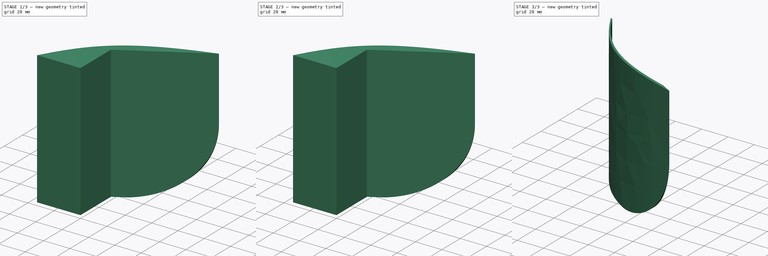
[diagram: build sequence overview — one tinted view per stage of 3, left to right]
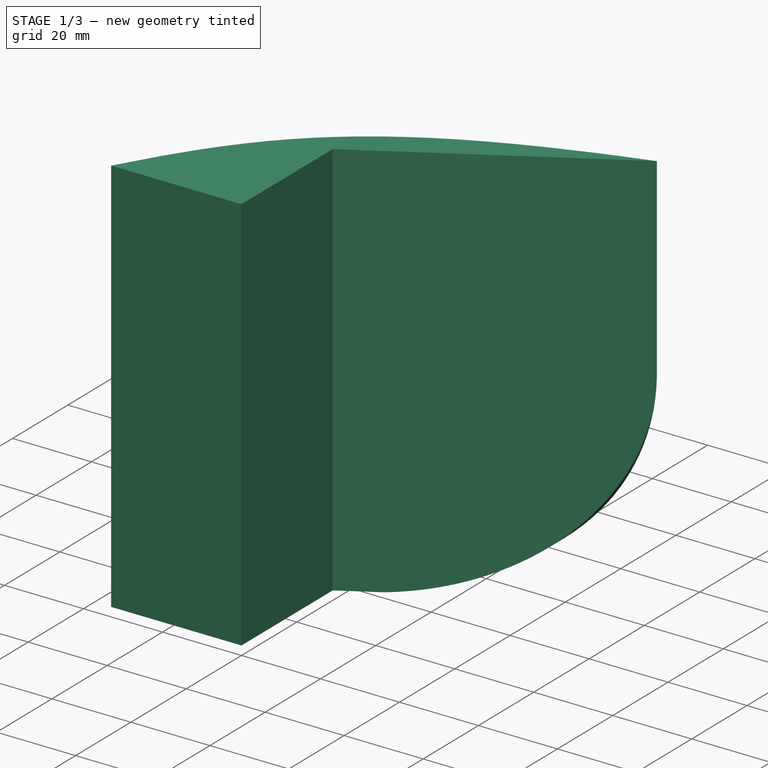
[diagram: stage 1 of 3 — iso view after this stage's code; geometry added in this stage tinted green]
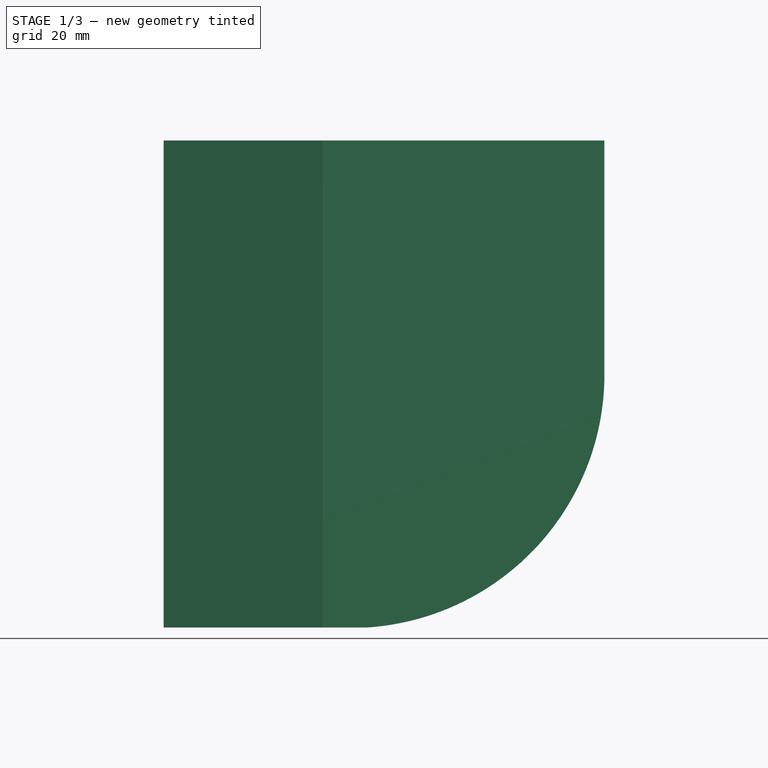
[diagram: stage 1 of 3 — front view after this stage's code; geometry added in this stage tinted green]
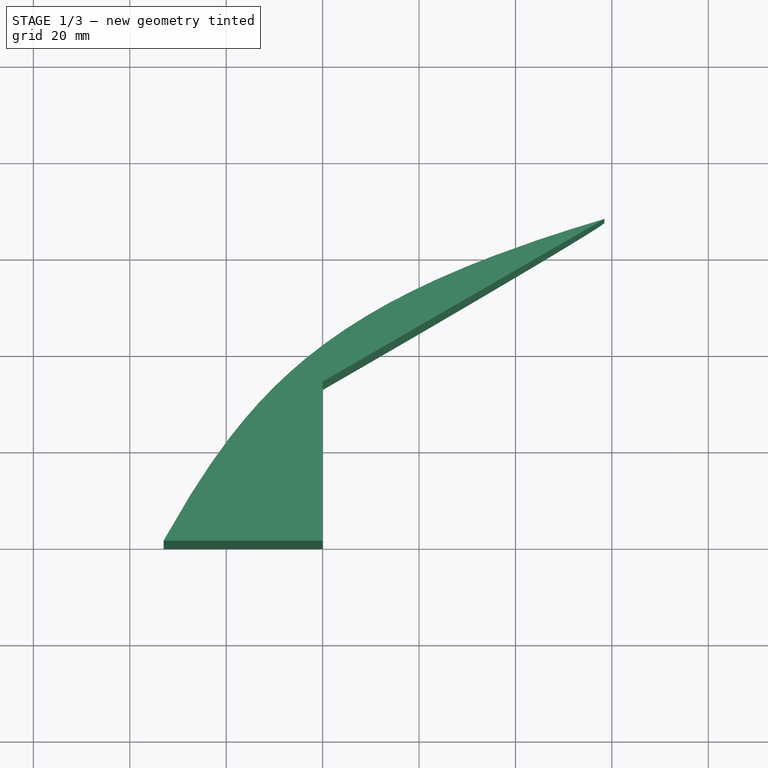
[diagram: stage 1 of 3 — top view after this stage's code; geometry added in this stage tinted green]
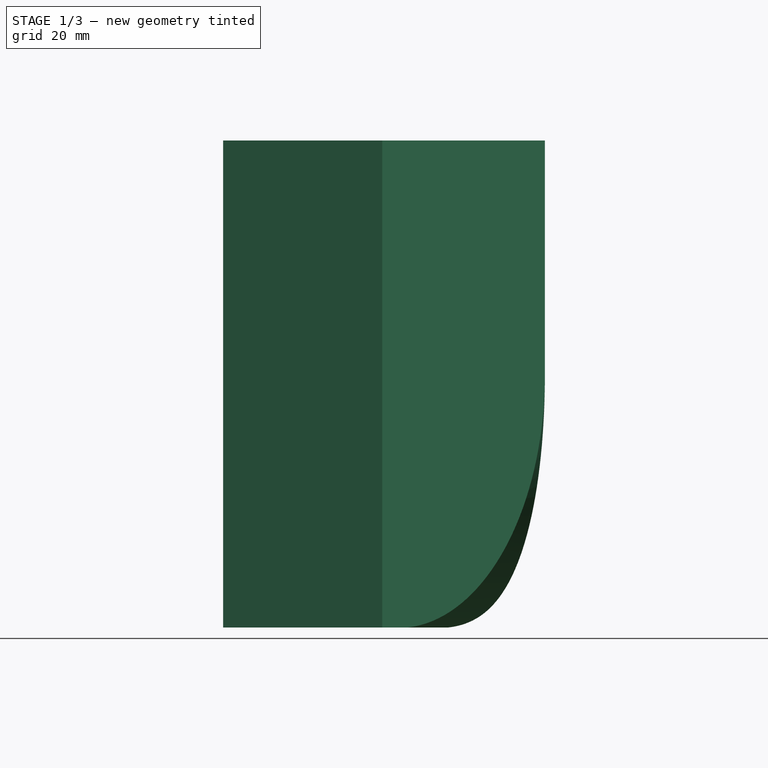
[diagram: stage 1 of 3 — right view after this stage's code; geometry added in this stage tinted green]
FCSTD DOCUMENT  (FreeCAD 0.18R16110 (Git))
Label: saviniuswing2
License: All rights reserved
LicenseURL: http://en.wikipedia.org/wiki/All_rights_reserved
objects: Sketcher::SketchObject×4, PartDesign::Pad×2, PartDesign::Pocket×2, PartDesign::Body×2, Part::Cut×1, Part::Mirroring×1
note: 16 computed .brp shape members not serialized (recipe doc carries the construction recipe); baked Part::Feature solids carry a one-line shape summary decoded from their .brp

FEATURE [PartDesign::Body] Body
  Group = -> [Sketch,Pad,Sketch001,Pocket]
  Origin = -> Origin
  Tip = -> Pocket
FEATURE [Sketcher::SketchObject] Sketch002
  MapMode = 5
  Support = -> [XY_Plane001]
  sketch-geometry (15):
    g0: LineSegment StartX=0 StartY=0 StartZ=0 EndX=-33 EndY=0 EndZ=0
    g1: LineSegment StartX=0 StartY=0 StartZ=0 EndX=0 EndY=33 EndZ=0
    g2: LineSegment StartX=0 StartY=33 StartZ=0 EndX=6.75 EndY=36.8971 EndZ=0
    g3: LineSegment [constr] StartX=0 StartY=33 StartZ=0 EndX=6.75 EndY=33 EndZ=0
    g4: LineSegment [constr] StartX=6.75 StartY=36.8971 StartZ=0 EndX=6.75 EndY=33 EndZ=0
    g5: LineSegment StartX=6.75 StartY=36.8971 StartZ=0 EndX=58.45 EndY=66.7461 EndZ=0
    g6: LineSegment [constr] StartX=0 StartY=33 StartZ=0 EndX=58.45 EndY=33 EndZ=0
    g7: LineSegment [constr] StartX=58.45 StartY=33 StartZ=0 EndX=58.45 EndY=66.7461 EndZ=0
    g8-g11: Circle [constr] x4 (B-spline internal-alignment scaffolding for g12; pole/knot coordinates omitted)
    g12: BSplineCurve PolesCount=4 KnotsCount=2 Degree=3 IsPeriodic=0
    g13: GeomPoint [constr] X=-33 Y=0 Z=0
    g14: GeomPoint [constr] X=56.5 Y=65.6203 Z=0
  constraints (33):
    c: Coincident(g0,g-1)
    c: PointOnObject(g0,g-1)
    c: Coincident(g1,g0)
    c: PointOnObject(g1,g-2)
    c: Distance(g1) = 33
    c: Distance(g0) = 33
    c: Coincident(g2,g1)
    c: Angle(g1,g2) = 2.0944
    c: Coincident(g3,g1)
    c: Horizontal(g3)
    c: Distance(g3) = 6.75
    c: Coincident(g4,g2)
    c: Coincident(g4,g3)
    c: Vertical(g4)
    c: Coincident(g5,g2)
    c: Parallel(g2,g5)
    c: Coincident(g6,g1)
    c: Horizontal(g6)
    c: Distance(g6) = 58.45
    c: Coincident(g7,g6)
    c: Coincident(g7,g5)
    c: Vertical(g7)
    c: Coincident(g12,g0)
    c: Radius(g8) = 6
    c: Equal(g8,g9)
    c: Equal(g8,g10)
    c: Equal(g8,g11)
    c: Coincident(g12,g5)
    c: InternalAlignment(g8-g11 -> g12) x4
    c: DistanceX(g9) = -14.4445
    c: DistanceY(g9) = 33.1474
    c: DistanceX(g10) = 2.60439
    c: DistanceY(g10) = 50.1962
FEATURE [PartDesign::Pad] Pad001
  Length = 101
  Length2 = 100
  Profile = -> Sketch002
  Type = 0
FEATURE [Sketcher::SketchObject] Sketch003
  MapMode = 5
  Placement = pos=(0,0,0) rot=(1,0,0;1.5708rad)
  Support = -> [Pad001]
  sketch-geometry (3):
    g0: LineSegment StartX=2.35 StartY=0 StartZ=0 EndX=58.45 EndY=0 EndZ=0
    g1: LineSegment StartX=58.45 StartY=0 StartZ=0 EndX=58.45 EndY=51.51 EndZ=0
    g2: ArcOfCircle CenterX=5.79161 CenterY=52.5562 CenterZ=0 NormalX=0 NormalY=0 NormalZ=1 AngleXU=0 Radius=52.6688 StartAngle=4.647 EndAngle=6.26332
  constraints (9):
    c: PointOnObject(g0,g-1)
    c: PointOnObject(g0,g-1)
    c: DistanceX(g0) = 58.45
    c: DistanceX(g0) = 2.35
    c: Coincident(g1,g0)
    c: Vertical(g1)
    c: DistanceY(g1) = 51.51
    c: Coincident(g2,g0)
    c: Coincident(g2,g1)
FEATURE [PartDesign::Pocket] Pocket001
  BaseFeature = -> Pad001
  Length = 5
  Length2 = 100
  Profile = -> Sketch003
  Type = 1
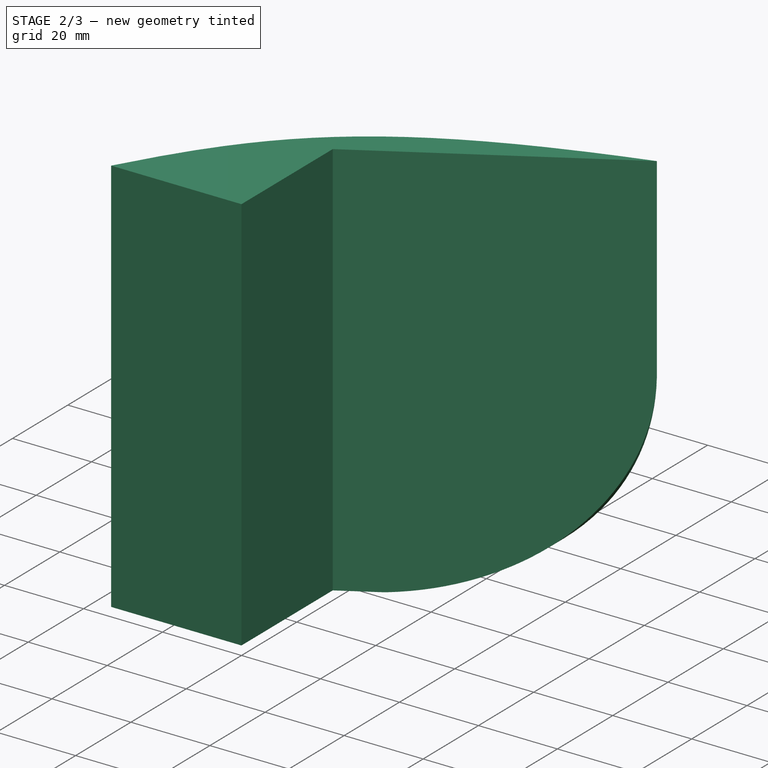
[diagram: stage 2 of 3 — iso view after this stage's code; geometry added in this stage tinted green]
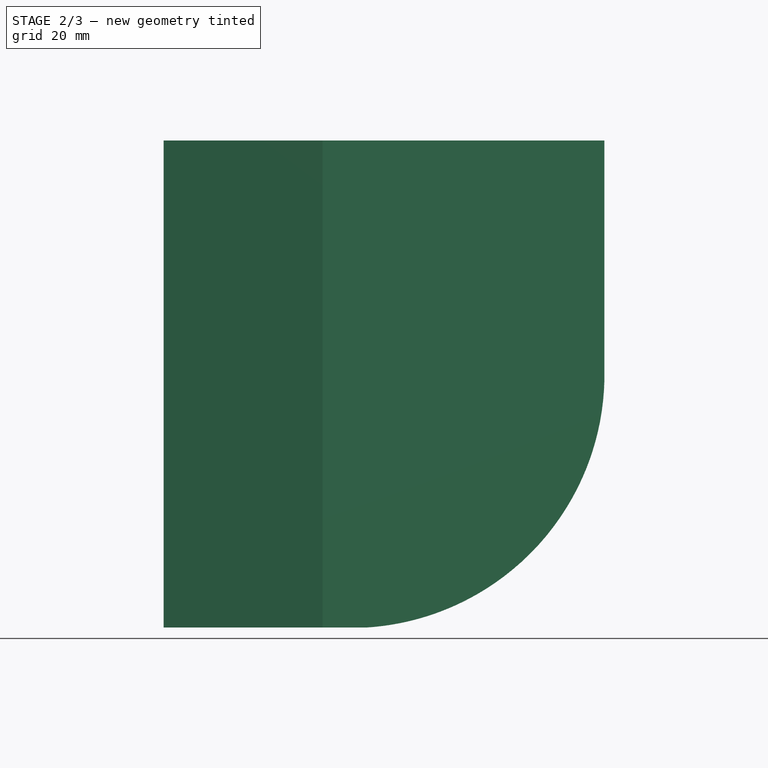
[diagram: stage 2 of 3 — front view after this stage's code; geometry added in this stage tinted green]
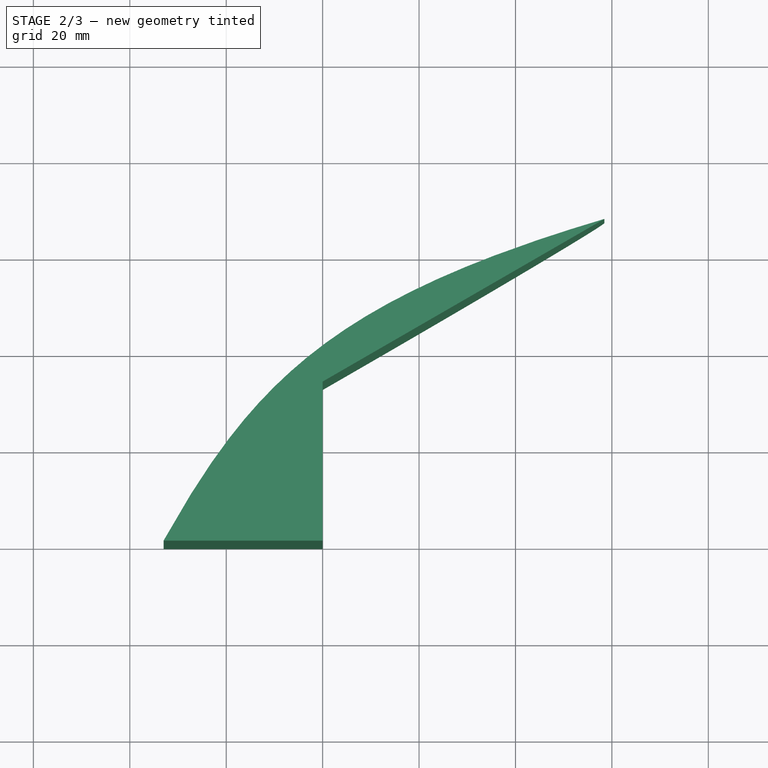
[diagram: stage 2 of 3 — top view after this stage's code; geometry added in this stage tinted green]
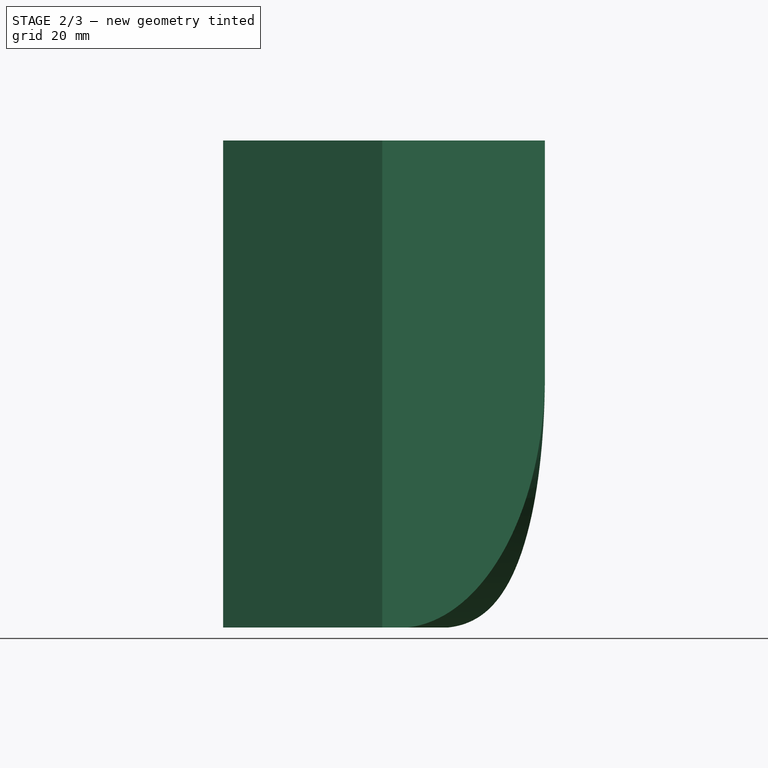
[diagram: stage 2 of 3 — right view after this stage's code; geometry added in this stage tinted green]
FEATURE [Sketcher::SketchObject] Sketch
  MapMode = 5
  Support = -> [XY_Plane]
  sketch-geometry (15):
    g0: LineSegment StartX=0 StartY=0 StartZ=0 EndX=-33 EndY=0 EndZ=0
    g1: LineSegment StartX=0 StartY=0 StartZ=0 EndX=0 EndY=33 EndZ=0
    g2: LineSegment StartX=0 StartY=33 StartZ=0 EndX=6.75 EndY=36.8971 EndZ=0
    g3: LineSegment [constr] StartX=0 StartY=33 StartZ=0 EndX=6.75 EndY=33 EndZ=0
    g4: LineSegment [constr] StartX=6.75 StartY=36.8971 StartZ=0 EndX=6.75 EndY=33 EndZ=0
    g5: LineSegment StartX=6.75 StartY=36.8971 StartZ=0 EndX=58.45 EndY=66.7461 EndZ=0
    g6: LineSegment [constr] StartX=0 StartY=33 StartZ=0 EndX=58.45 EndY=33 EndZ=0
    g7: LineSegment [constr] StartX=58.45 StartY=33 StartZ=0 EndX=58.45 EndY=66.7461 EndZ=0
    g8-g11: Circle [constr] x4 (B-spline internal-alignment scaffolding for g12; pole/knot coordinates omitted)
    g12: BSplineCurve PolesCount=4 KnotsCount=2 Degree=3 IsPeriodic=0
    g13: GeomPoint [constr] X=-33 Y=0 Z=0
    g14: GeomPoint [constr] X=56.5 Y=65.6203 Z=0
  constraints (33):
    c: Coincident(g0,g-1)
    c: PointOnObject(g0,g-1)
    c: Coincident(g1,g0)
    c: PointOnObject(g1,g-2)
    c: Distance(g1) = 33
    c: Distance(g0) = 33
    c: Coincident(g2,g1)
    c: Angle(g1,g2) = 2.0944
    c: Coincident(g3,g1)
    c: Horizontal(g3)
    c: Distance(g3) = 6.75
    c: Coincident(g4,g2)
    c: Coincident(g4,g3)
    c: Vertical(g4)
    c: Coincident(g5,g2)
    c: Parallel(g2,g5)
    c: Coincident(g6,g1)
    c: Horizontal(g6)
    c: Distance(g6) = 58.45
    c: Coincident(g7,g6)
    c: Coincident(g7,g5)
    c: Vertical(g7)
    c: Coincident(g12,g0)
    c: Radius(g8) = 6
    c: Equal(g8,g9)
    c: Equal(g8,g10)
    c: Equal(g8,g11)
    c: Coincident(g12,g5)
    c: InternalAlignment(g8-g11 -> g12) x4
    c: DistanceX(g9) = -14.4445
    c: DistanceY(g9) = 33.1474
    c: DistanceX(g10) = 2.60439
    c: DistanceY(g10) = 50.1962
FEATURE [PartDesign::Pad] Pad
  Length = 101
  Length2 = 100
  Profile = -> Sketch
  Type = 0
FEATURE [Sketcher::SketchObject] Sketch001
  MapMode = 5
  Placement = pos=(0,0,0) rot=(1,0,0;1.5708rad)
  Support = -> [Pad]
  sketch-geometry (3):
    g0: LineSegment StartX=2.35 StartY=0 StartZ=0 EndX=58.45 EndY=0 EndZ=0
    g1: LineSegment StartX=58.45 StartY=0 StartZ=0 EndX=58.45 EndY=51.51 EndZ=0
    g2: ArcOfCircle CenterX=5.79161 CenterY=52.5562 CenterZ=0 NormalX=0 NormalY=0 NormalZ=1 AngleXU=0 Radius=52.6688 StartAngle=4.647 EndAngle=6.26332
  constraints (9):
    c: PointOnObject(g0,g-1)
    c: PointOnObject(g0,g-1)
    c: DistanceX(g0) = 58.45
    c: DistanceX(g0) = 2.35
    c: Coincident(g1,g0)
    c: Vertical(g1)
    c: DistanceY(g1) = 51.51
    c: Coincident(g2,g0)
    c: Coincident(g2,g1)
FEATURE [PartDesign::Pocket] Pocket
  BaseFeature = -> Pad
  Length = 5
  Length2 = 100
  Profile = -> Sketch001
  Type = 1
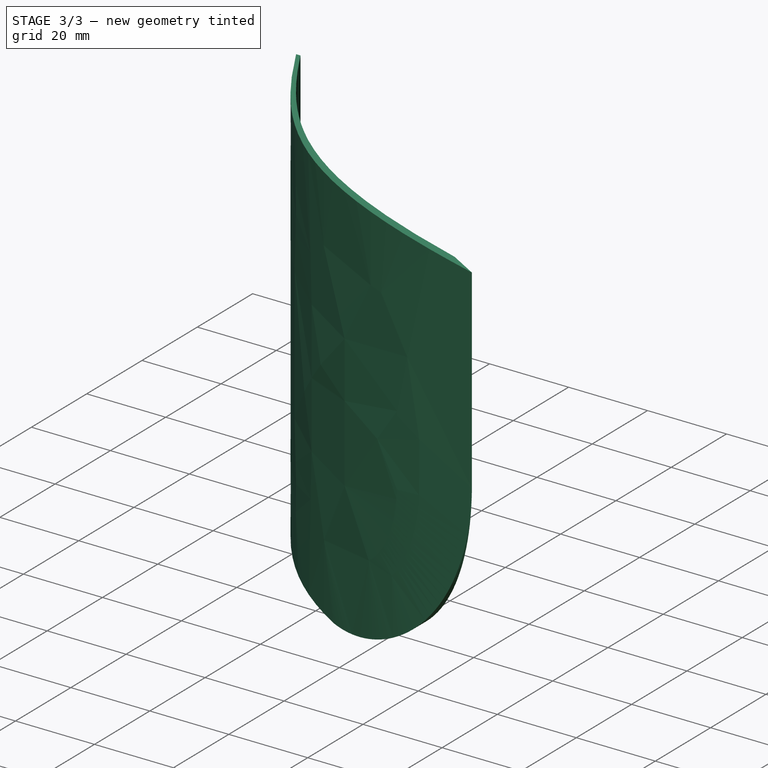
[diagram: stage 3 of 3 — iso view after this stage's code; geometry added in this stage tinted green]
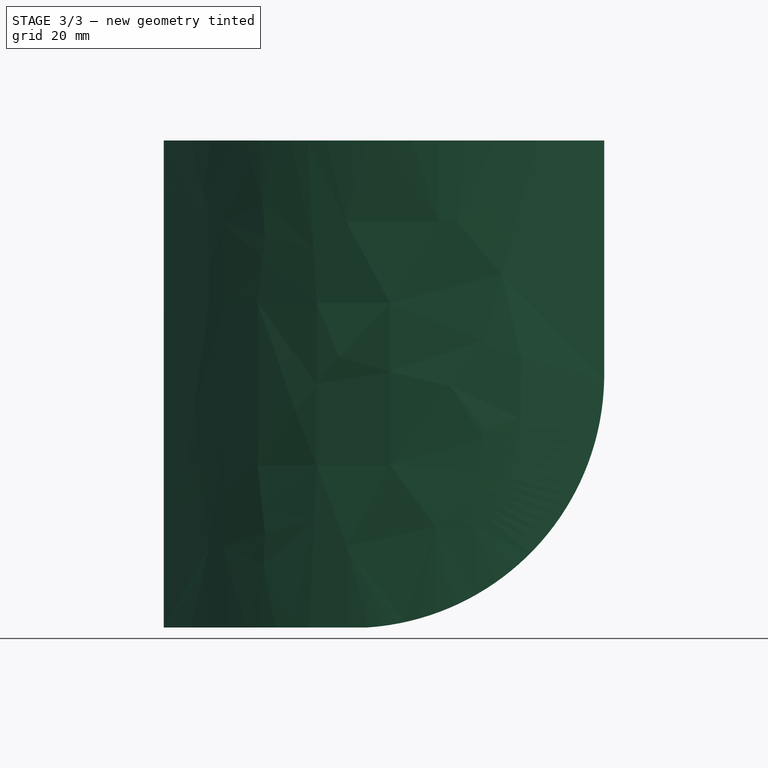
[diagram: stage 3 of 3 — front view after this stage's code; geometry added in this stage tinted green]
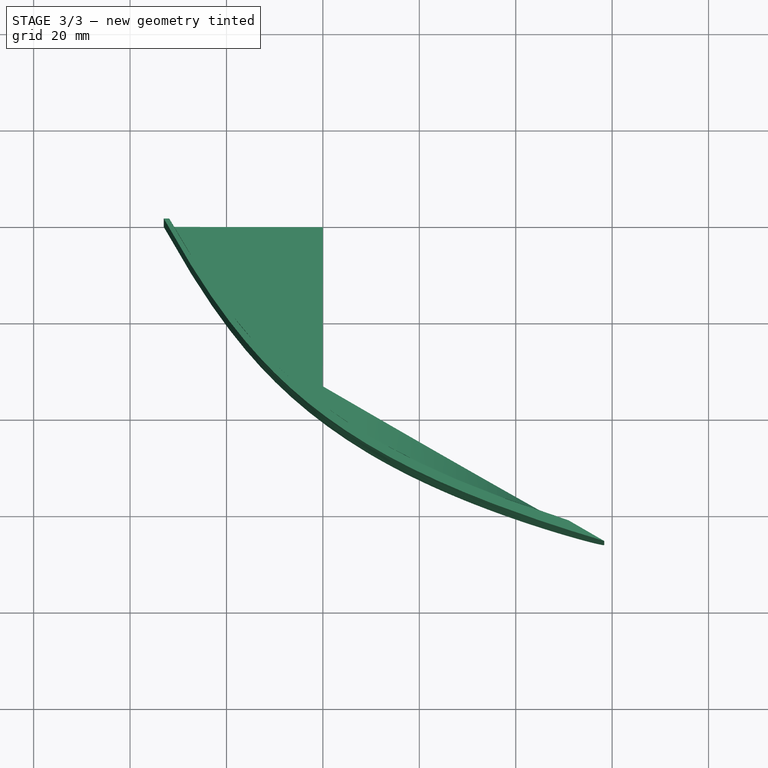
[diagram: stage 3 of 3 — top view after this stage's code; geometry added in this stage tinted green]
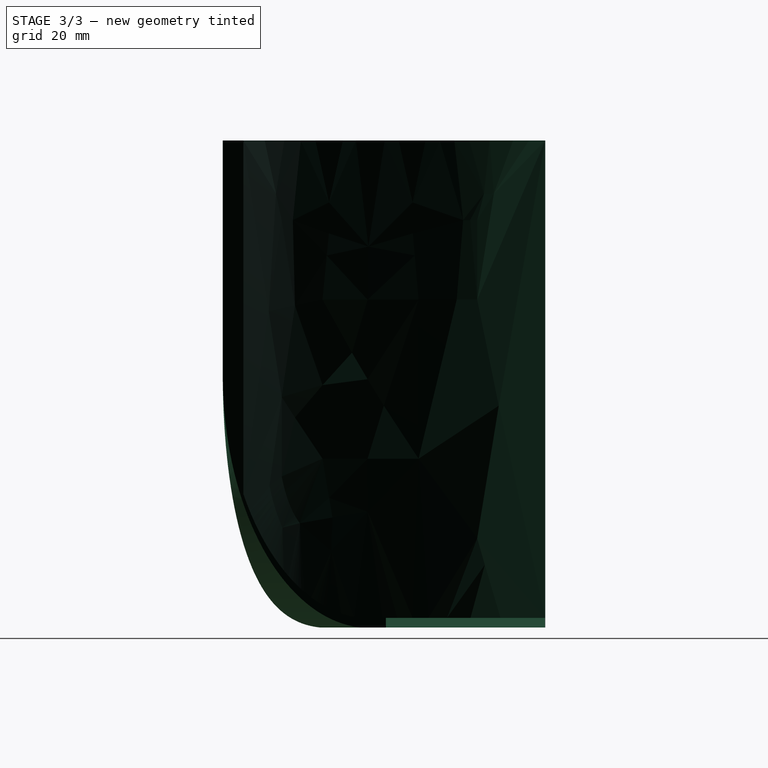
[diagram: stage 3 of 3 — right view after this stage's code; geometry added in this stage tinted green]
FEATURE [PartDesign::Body] Body001
  Group = -> [Sketch002,Pad001,Sketch003,Pocket001]
  Origin = -> Origin001
  Placement = pos=(0,-2,2) rot=(0,0,1;0rad)
  Tip = -> Pocket001
FEATURE [Part::Cut] Cut
  Base = -> Body
  Tool = -> Body001
FEATURE [Part::Mirroring] mirror  label="Mirror of Cut"
  Base = (-32.9852,0.0250695,101)
  Normal = (0.000760284,1,8.74228e-08)
  Source = -> Cut
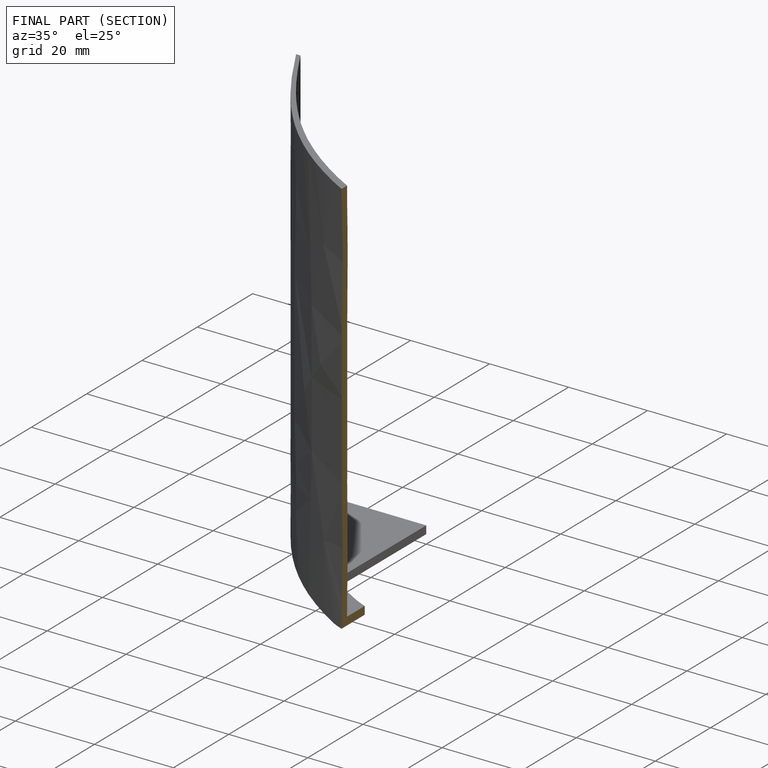
[diagram: finished part — half-section view (interior)]
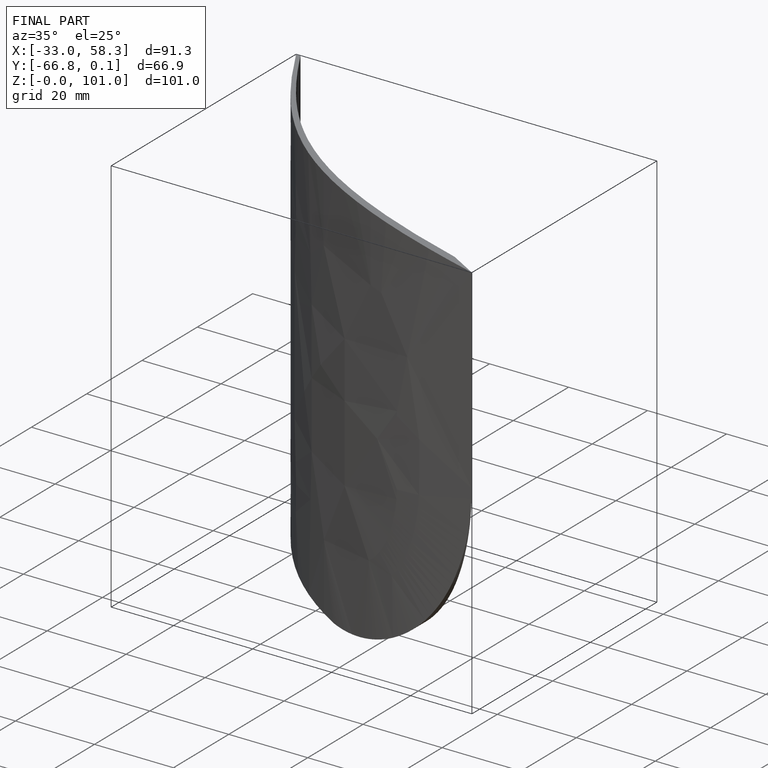
[diagram: finished part — iso view with bounding-box wireframe]
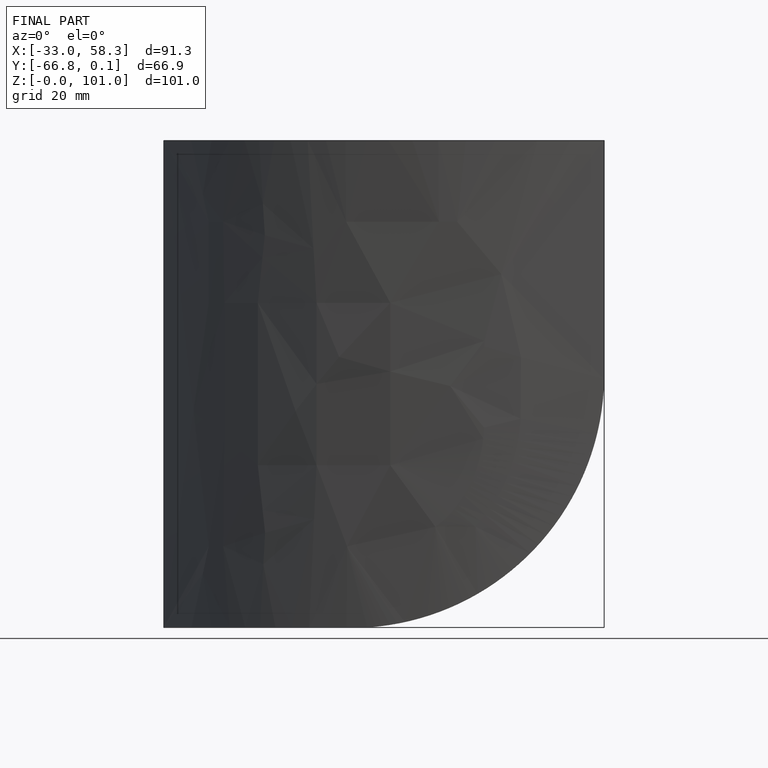
[diagram: finished part — front view with bounding-box wireframe]
